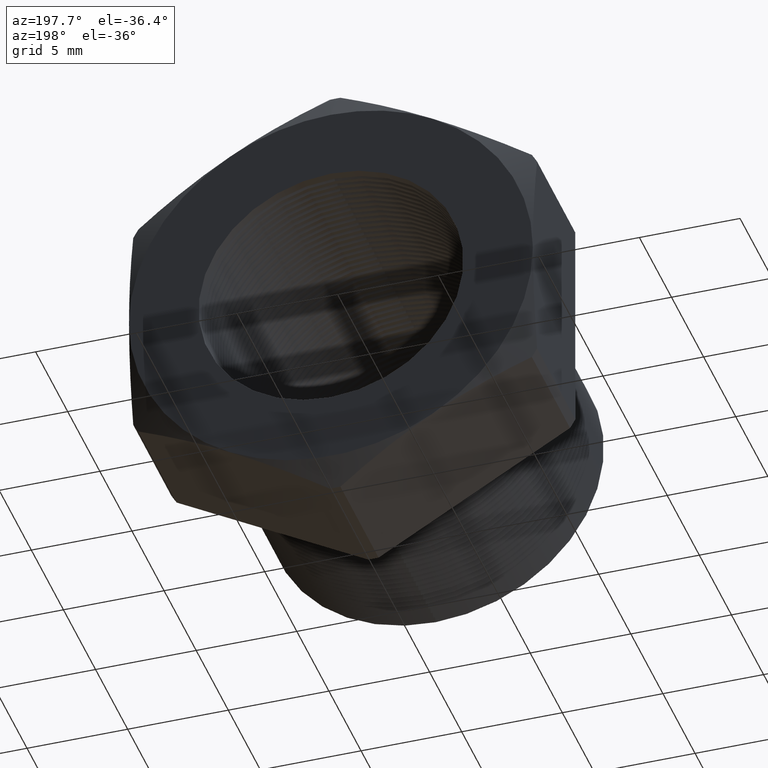
[diagram: clean part render]
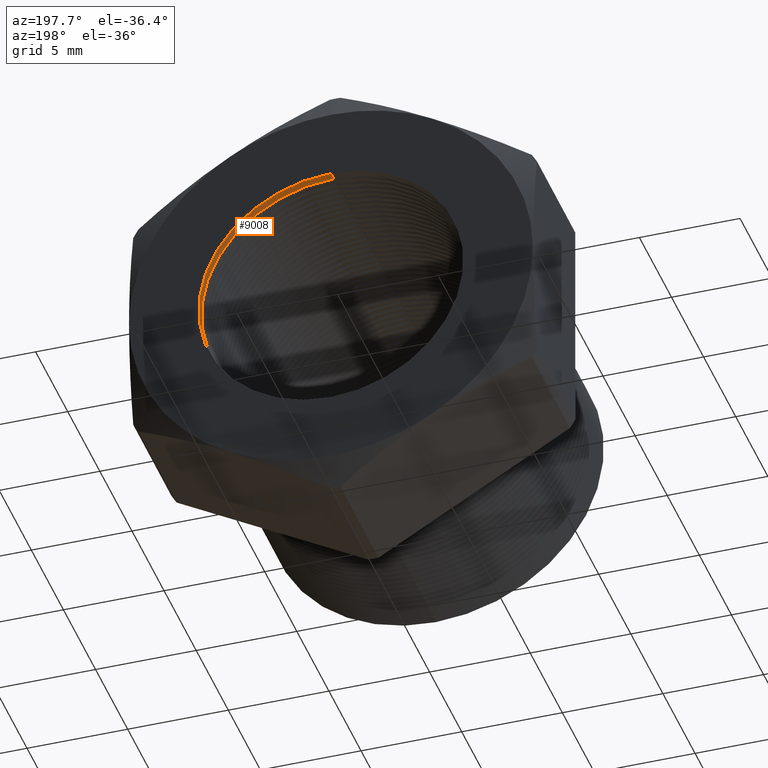
[diagram: same view with one face highlighted and labeled with its STEP entity id]
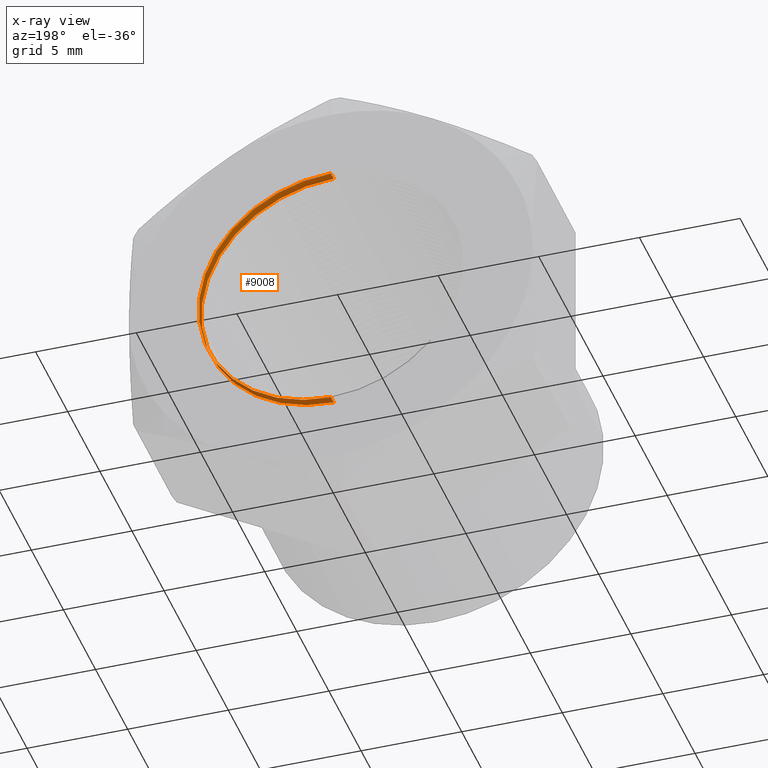
[diagram: x-ray of the same camera — body ghosted, the highlighted face saturated]
A machine part, auxiliary view. The second image highlights one B-rep face of the part: STEP entity #9008.
The next image is the same camera in x-ray: the body ghosted, the highlighted face saturated — about 0% of this face is hidden behind the body in this view.
In plain terms, the highlighted cylindrical surface (partial cylindrical patch) has radius 6.5783 mm, axis along (-0, -1, -0).
Its self-contained STEP definition (entity closure, byte-faithful):
#636 = EDGE_CURVE ( 'NONE', #2107, #2106, #3338, .T. ) ;
#2083 = EDGE_CURVE ( 'NONE', #2106, #2117, #6177, .T. ) ;
#2086 = EDGE_CURVE ( 'NONE', #2107, #2116, #6235, .T. ) ;
#2106 = VERTEX_POINT ( 'NONE', #6253 ) ;
#2107 = VERTEX_POINT ( 'NONE', #6252 ) ;
#2116 = VERTEX_POINT ( 'NONE', #6295 ) ;
#2117 = VERTEX_POINT ( 'NONE', #6294 ) ;
#3334 = DIRECTION ( 'NONE',  ( 0.0000000000000000000, 0.0000000000000000000, -1.000000000000000000 ) ) ;
#3335 = DIRECTION ( 'NONE',  ( -0.0000000000000000000, -1.000000000000000000, -0.0000000000000000000 ) ) ;
#3336 = CARTESIAN_POINT ( 'NONE',  ( 0.0000000000000000000, 0.4075548905829479200, 0.0000000000000000000 ) ) ;
#3337 = AXIS2_PLACEMENT_3D ( 'NONE', #3336, #3335, #3334 ) ;
#3338 = CIRCLE ( 'NONE', #3337, 0.2589880461203001900 ) ;
#6177 = LINE ( 'NONE', #6238, #6237 ) ;
#6232 = DIRECTION ( 'NONE',  ( -0.0000000000000000000, -1.000000000000000000, -0.0000000000000000000 ) ) ;
#6233 = VECTOR ( 'NONE', #6232, 39.37007874015748100 ) ;
#6234 = CARTESIAN_POINT ( 'NONE',  ( 0.0000000000000000000, 0.0000000000000000000, -0.2589880461203001900 ) ) ;
#6235 = LINE ( 'NONE', #6234, #6233 ) ;
#6236 = DIRECTION ( 'NONE',  ( -0.0000000000000000000, -1.000000000000000000, -0.0000000000000000000 ) ) ;
#6237 = VECTOR ( 'NONE', #6236, 39.37007874015748100 ) ;
#6238 = CARTESIAN_POINT ( 'NONE',  ( 3.171688816986526800E-017, 0.0000000000000000000, 0.2589880461203001900 ) ) ;
#6252 = CARTESIAN_POINT ( 'NONE',  ( 0.0000000000000000000, 0.4075548905829479200, -0.2589880461203001900 ) ) ;
#6253 = CARTESIAN_POINT ( 'NONE',  ( 3.171688816986526800E-017, 0.4075548905829479200, 0.2589880461203001900 ) ) ;
#6294 = CARTESIAN_POINT ( 'NONE',  ( 3.171688816986526800E-017, 0.3903219653570460000, 0.2589880461203001900 ) ) ;
#6295 = CARTESIAN_POINT ( 'NONE',  ( 0.0000000000000000000, 0.3903219653570460000, -0.2589880461203001900 ) ) ;
#7753 = DIRECTION ( 'NONE',  ( 0.0000000000000000000, 0.0000000000000000000, -1.000000000000000000 ) ) ;
#7754 = DIRECTION ( 'NONE',  ( -0.0000000000000000000, -1.000000000000000000, -0.0000000000000000000 ) ) ;
#7755 = CARTESIAN_POINT ( 'NONE',  ( 0.0000000000000000000, 0.0000000000000000000, 0.0000000000000000000 ) ) ;
#7756 = AXIS2_PLACEMENT_3D ( 'NONE', #7755, #7754, #7753 ) ;
#7757 = CYLINDRICAL_SURFACE ( 'NONE', #7756, 0.2589880461203001900 ) ;
#7758 = FACE_OUTER_BOUND ( 'NONE', #9241, .T. ) ;
#8079 = CIRCLE ( 'NONE', #8143, 0.2589880461203001900 ) ;
#8140 = DIRECTION ( 'NONE',  ( 0.0000000000000000000, 0.0000000000000000000, -1.000000000000000000 ) ) ;
#8141 = DIRECTION ( 'NONE',  ( -0.0000000000000000000, 1.000000000000000000, -0.0000000000000000000 ) ) ;
#8142 = CARTESIAN_POINT ( 'NONE',  ( 0.0000000000000000000, 0.3903219653570460000, 0.0000000000000000000 ) ) ;
#8143 = AXIS2_PLACEMENT_3D ( 'NONE', #8142, #8141, #8140 ) ;
#9008 = ADVANCED_FACE ( 'NONE', ( #7758 ), #7757, .F. ) ;
#9231 = EDGE_CURVE ( 'NONE', #2117, #2116, #8079, .T. ) ;
#9234 = ORIENTED_EDGE ( 'NONE', *, *, #2086, .T. ) ;
#9235 = ORIENTED_EDGE ( 'NONE', *, *, #9231, .F. ) ;
#9241 = EDGE_LOOP ( 'NONE', ( #9242, #9243, #9234, #9235 ) ) ;
#9242 = ORIENTED_EDGE ( 'NONE', *, *, #2083, .F. ) ;
#9243 = ORIENTED_EDGE ( 'NONE', *, *, #636, .F. ) ;